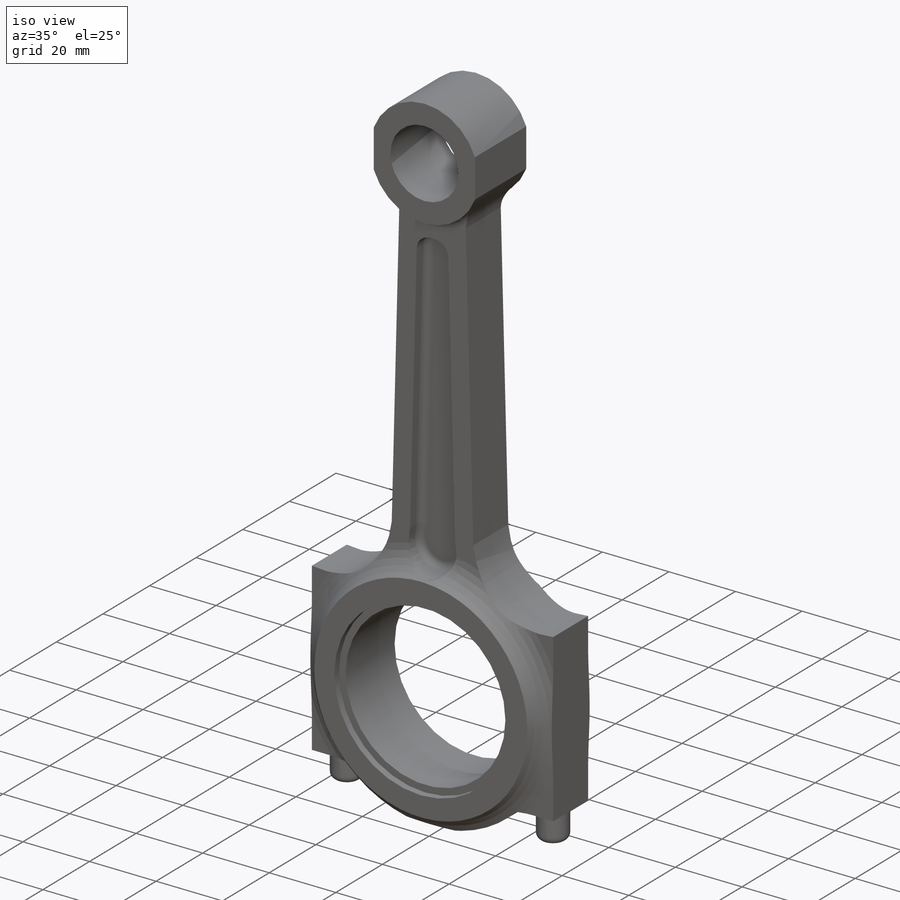
[diagram: iso view]
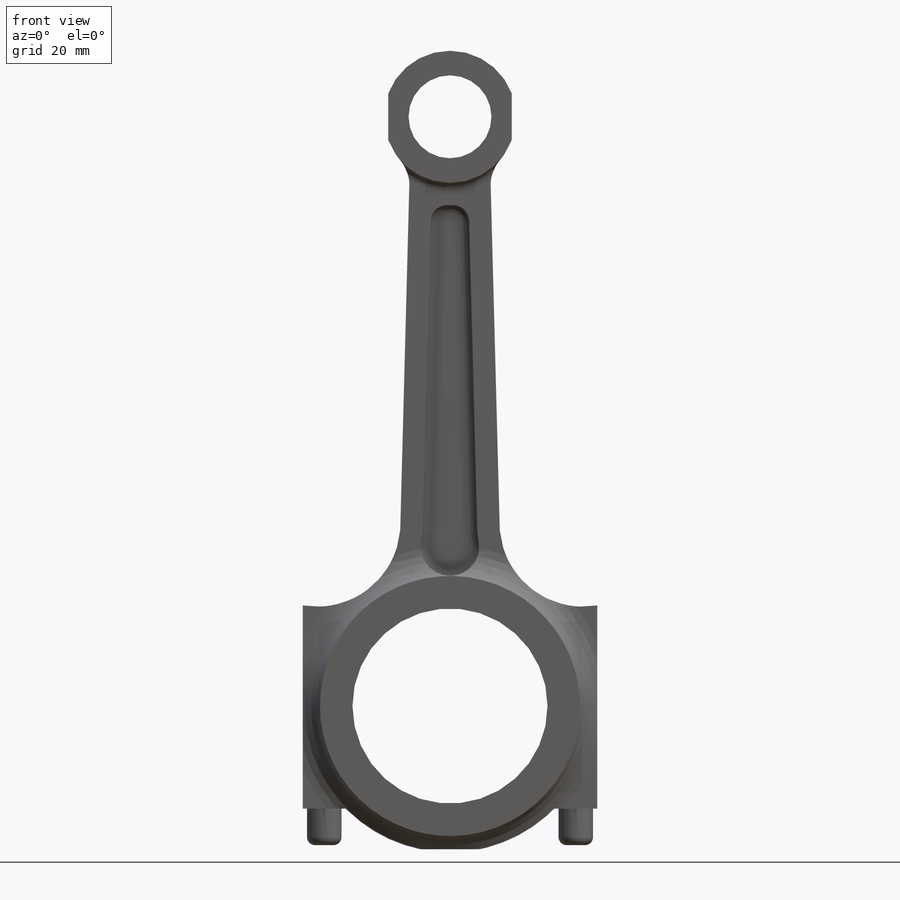
[diagram: front view]
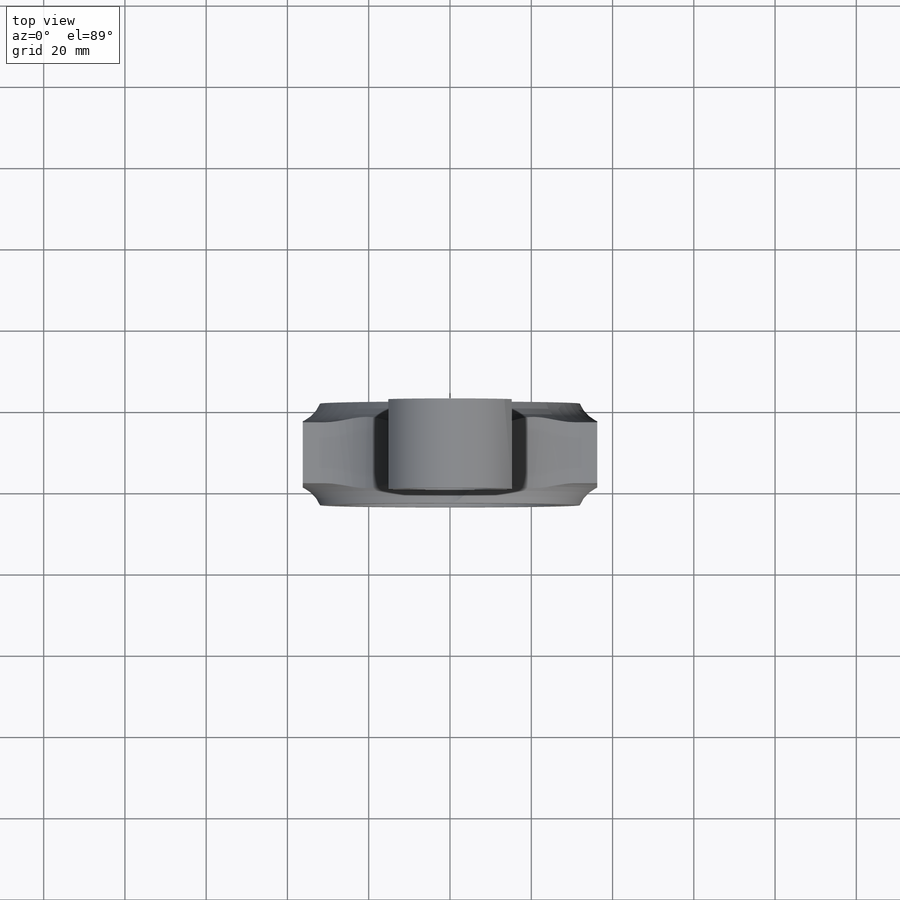
[diagram: top view]
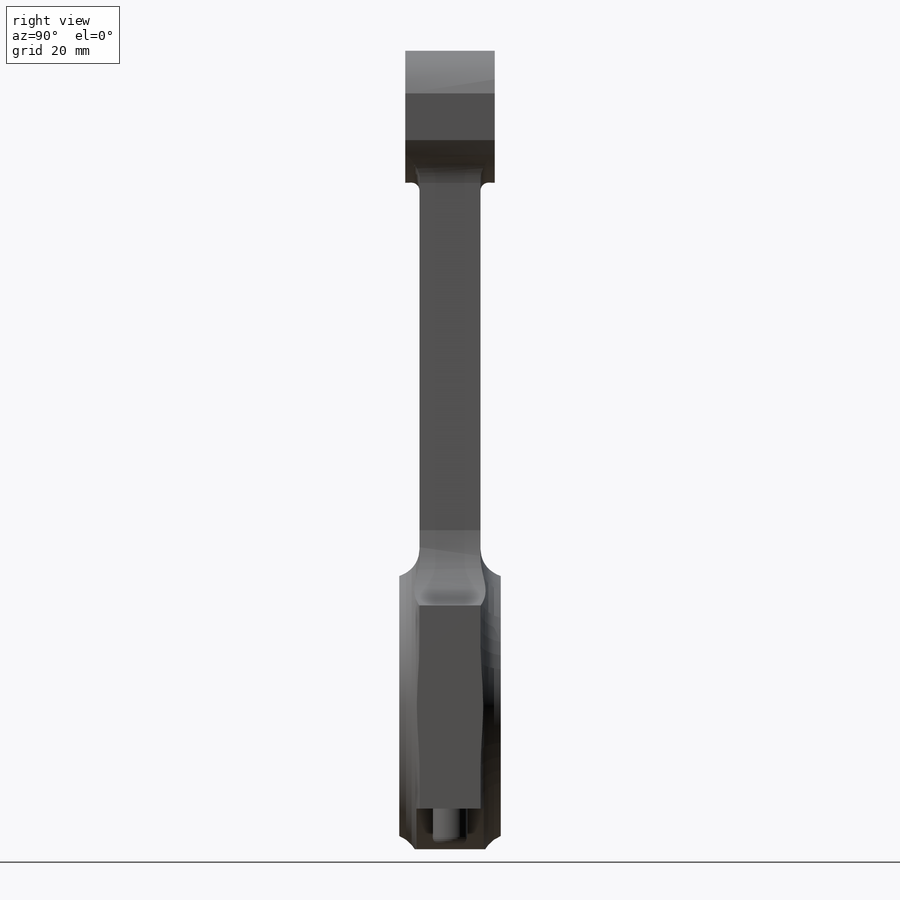
[diagram: right view]
SOLIDWORKS PART (.sldprt)
format: sldprt  version: not decoded by parser v0  size: 462,848 bytes
history: native  units: mm
features: sketch x7, fillet x6, extrude x5, plane x2, cut_extrude x2, material x1 (+11 scaffold rows collapsed)
feature tree (34):
  scaffold x11  (default folders/planes/origin — collapsed)
  material  "Materiale <non specificato>"
  sketch  "Sketch1"  dims[D1=20.4mm D2=32.5mm D3=11.5mm]
  extrude  "Boss-Extrude1"  Depth=22mm
  plane  "Plane1"  Offset=3.5mm
  sketch  "Sketch2"  dims[c1.D2=10.0mm c1.D9=~58.148276mm c1.D8=36.0mm c1.D12=50.1mm c2.D9=54.0mm c2.D12=54.0mm c2.D1=20.0mm c2.D3=87.0mm c2.D4=24.5mm c2.D5=18.5mm c2.D6=72.5mm c2.D7=27.0mm c2.D8=10.7mm c2.D10=33.0mm c3.D9=9.0mm c3.D11=10.0mm c3.D12=145.0mm c3.D3=145.0mm]
  extrude  "Boss-Extrude2"  Depth=15mm
  sketch  "Sketch3"  dims[D2=4.0mm D3=5.0mm D1=5.5mm]
  cut_extrude  "Cut-Extrude1"  Depth=4.5mm
  fillet  "Fillet1"  Radius=2mm
  sketch  "Sketch4"
  cut_extrude  "Cut-Extrude2"  Depth=4.5mm
  fillet  "Fillet2"  Radius=2mm
  fillet  "Fillet3"  Radius=2mm
  fillet  "Fillet4"  Radius=2mm
  sketch  "Sketch6"  dims[D1=52.0mm]
  extrude  "Boss-Extrude6"  Depth=5mm
  fillet  "Fillet6"  Radius=8mm
  sketch  "Sketch8"  dims[D1=8.5mm]
  extrude  "Boss-Extrude8"  Depth=9mm
  fillet  "Fillet8"  Radius=2mm
  plane  "Plane2"  Offset=2mm
  sketch  "Sketch9"  dims[c1.D1=~27.686522mm c1.D2=48.0mm c2.D1=2.0mm]
  extrude  "Boss-Extrude9"  Depth=21mm
decode coverage: 19 of 20 modeling features carry decoded parameters
note: ~ marks probable driven/reference dimensions
note: suppression state not decoded; provenance and decode notes live in map.json
